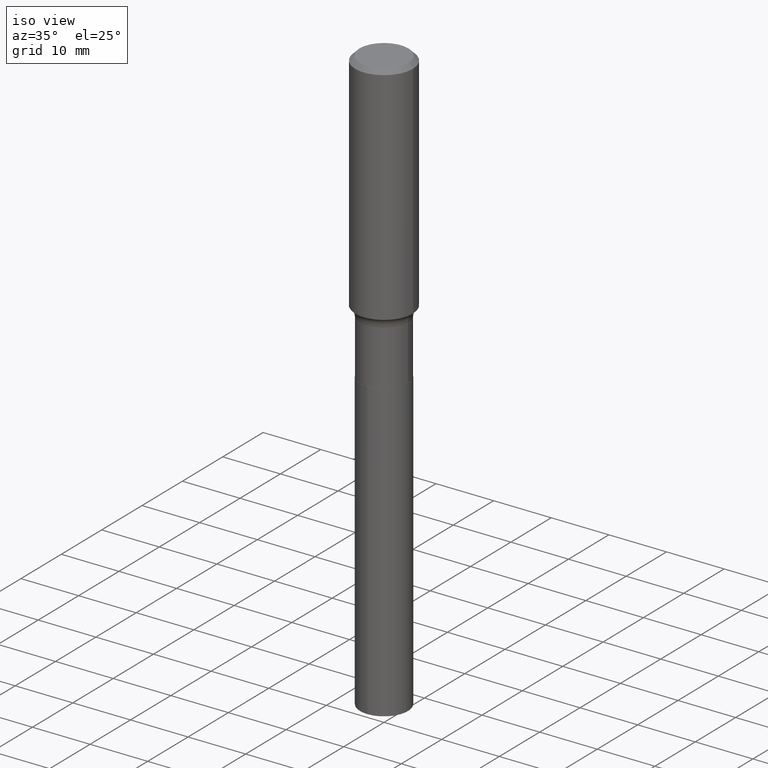
[diagram: clean part render]
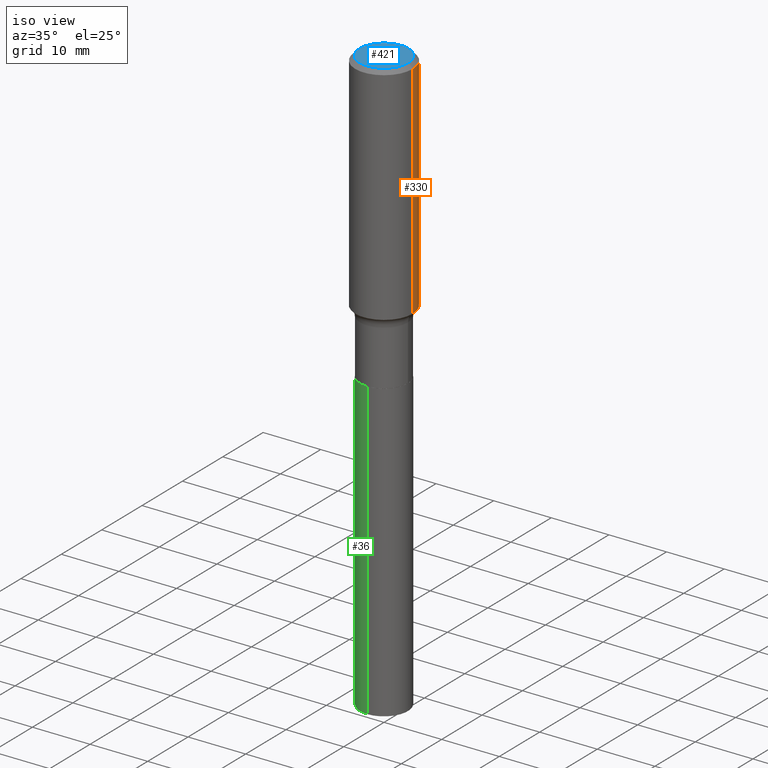
[diagram: same view with three faces highlighted in distinct colors, each labeled with its STEP entity id]
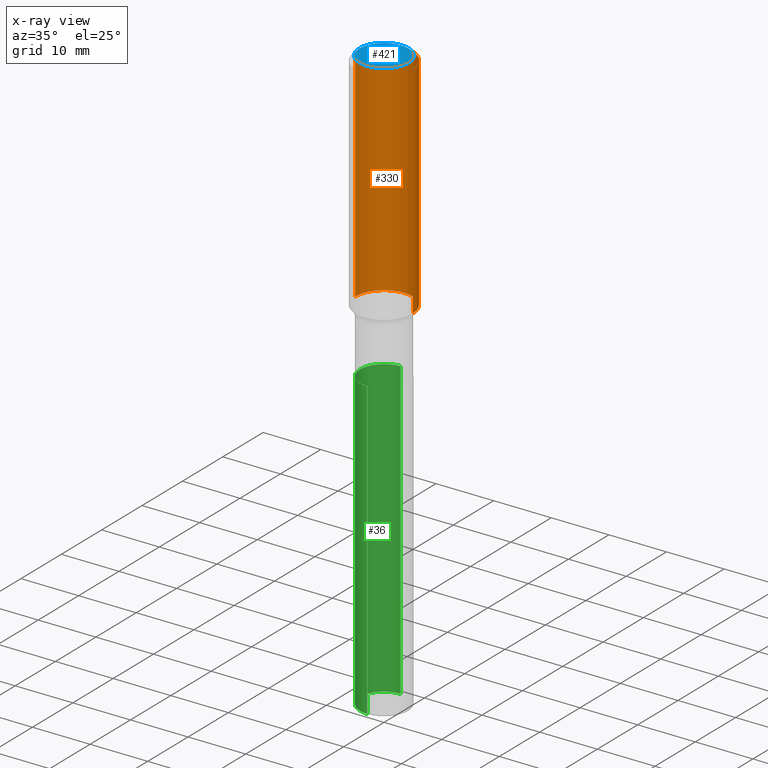
[diagram: x-ray of the same camera — body ghosted, the three highlighted faces saturated]
A machine part, iso view with three faces highlighted in distinct colors.
The next image is the same camera in x-ray (body ghosted, the three faces saturated) — at least one of them is partly hidden behind the body in this view.
Their STEP definitions:

[orange] entity #330 — the highlighted cylindrical surface (edge-blend (fillet) strip) has radius 5 mm, axis along (-0, 0, 1).
#9 = CARTESIAN_POINT ( 'NONE',  ( -0.1968500000000000527, -1.342112519284219140E-15, -0.02952750000000022371 ) ) ;
#12 = CARTESIAN_POINT ( 'NONE',  ( 3.767181709122995344E-29, -5.378537074023262958E-15, -1.540474243464055704 ) ) ;
#25 = DIRECTION ( 'NONE',  ( -2.445468806185136597E-29, 3.491481338843145583E-15, 1.000000000000000000 ) ) ;
#29 = CARTESIAN_POINT ( 'NONE',  ( -0.1968500000000001915, -3.979833698679504381E-15, -1.540474243464055704 ) ) ;
#32 = CARTESIAN_POINT ( 'NONE',  ( 7.220858017463217368E-31, -1.030947152326917719E-16, -0.02952750000000022371 ) ) ;
#64 = VERTEX_POINT ( 'NONE', #29 ) ;
#93 = AXIS2_PLACEMENT_3D ( 'NONE', #12, #461, #428 ) ;
#98 = VECTOR ( 'NONE', #466, 39.37007874015748143 ) ;
#103 = VERTEX_POINT ( 'NONE', #311 ) ;
#132 = EDGE_LOOP ( 'NONE', ( #419, #379, #472, #241 ) ) ;
#135 = CARTESIAN_POINT ( 'NONE',  ( 0.1968500000000001915, -6.753133277125806144E-15, -1.540474243464055704 ) ) ;
#181 = EDGE_CURVE ( 'NONE', #103, #183, #326, .T. ) ;
#183 = VERTEX_POINT ( 'NONE', #9 ) ;
#191 = LINE ( 'NONE', #261, #378 ) ;
#214 = VERTEX_POINT ( 'NONE', #135 ) ;
#220 = CARTESIAN_POINT ( 'NONE',  ( 0.1968500000000001082, -1.374596203102542397E-15, 9.598753983154305062E-30 ) ) ;
#241 = ORIENTED_EDGE ( 'NONE', *, *, #412, .F. ) ;
#255 = DIRECTION ( 'NONE',  ( 1.000000000000000000, -6.982962677686266711E-15, 0.000000000000000000 ) ) ;
#261 = CARTESIAN_POINT ( 'NONE',  ( -0.1968500000000001082, 1.398703375343757985E-15, -9.682923725166787881E-30 ) ) ;
#266 = EDGE_CURVE ( 'NONE', #64, #183, #191, .T. ) ;
#302 = CYLINDRICAL_SURFACE ( 'NONE', #485, 0.1968500000000001082 ) ;
#311 = CARTESIAN_POINT ( 'NONE',  ( 0.1968500000000000527, -1.477690918335233688E-15, -0.02952750000000022371 ) ) ;
#326 = CIRCLE ( 'NONE', #477, 0.1968500000000000527 ) ;
#330 = ADVANCED_FACE ( 'NONE', ( #482 ), #302, .T. ) ;
#337 = DIRECTION ( 'NONE',  ( -2.445468806185136877E-29, 3.491481338843145188E-15, 1.000000000000000000 ) ) ;
#350 = EDGE_CURVE ( 'NONE', #214, #64, #459, .T. ) ;
#375 = CARTESIAN_POINT ( 'NONE',  ( 0.000000000000000000, 0.000000000000000000, 0.000000000000000000 ) ) ;
#378 = VECTOR ( 'NONE', #337, 39.37007874015748143 ) ;
#379 = ORIENTED_EDGE ( 'NONE', *, *, #266, .T. ) ;
#387 = DIRECTION ( 'NONE',  ( 1.000000000000000000, -6.982962677686266711E-15, 4.876176775795935793E-29 ) ) ;
#412 = EDGE_CURVE ( 'NONE', #214, #103, #475, .T. ) ;
#419 = ORIENTED_EDGE ( 'NONE', *, *, #350, .T. ) ;
#428 = DIRECTION ( 'NONE',  ( 1.000000000000000000, -6.982962677686266711E-15, 0.000000000000000000 ) ) ;
#452 = DIRECTION ( 'NONE',  ( -2.445468806185136597E-29, 3.491481338843145583E-15, 1.000000000000000000 ) ) ;
#459 = CIRCLE ( 'NONE', #93, 0.1968500000000001915 ) ;
#461 = DIRECTION ( 'NONE',  ( -2.445468806185136597E-29, 3.491481338843145583E-15, 1.000000000000000000 ) ) ;
#466 = DIRECTION ( 'NONE',  ( -2.445468806185136877E-29, 3.491481338843145188E-15, 1.000000000000000000 ) ) ;
#472 = ORIENTED_EDGE ( 'NONE', *, *, #181, .F. ) ;
#475 = LINE ( 'NONE', #220, #98 ) ;
#477 = AXIS2_PLACEMENT_3D ( 'NONE', #32, #452, #255 ) ;
#482 = FACE_OUTER_BOUND ( 'NONE', #132, .T. ) ;
#485 = AXIS2_PLACEMENT_3D ( 'NONE', #375, #25, #387 ) ;

[blue] entity #421 — the highlighted planar face has unit normal (0, -0, -1).
#34 = EDGE_CURVE ( 'NONE', #107, #441, #80, .T. ) ;
#44 = DIRECTION ( 'NONE',  ( -2.445468806185136597E-29, 3.491481338843145583E-15, 1.000000000000000000 ) ) ;
#80 = CIRCLE ( 'NONE', #199, 0.1673224999999999851 ) ;
#97 = DIRECTION ( 'NONE',  ( 1.000000000000000000, -6.982962677686267499E-15, 4.876294436782262290E-29 ) ) ;
#107 = VERTEX_POINT ( 'NONE', #315 ) ;
#178 = ORIENTED_EDGE ( 'NONE', *, *, #385, .T. ) ;
#199 = AXIS2_PLACEMENT_3D ( 'NONE', #431, #427, #97 ) ;
#201 = DIRECTION ( 'NONE',  ( 1.000000000000000000, -6.982962677686267499E-15, 4.876294436782262290E-29 ) ) ;
#206 = CARTESIAN_POINT ( 'NONE',  ( 0.1673224999999999851, -1.300749711163072594E-15, 4.096137381456741925E-18 ) ) ;
#209 = DIRECTION ( 'NONE',  ( 2.438088387897960049E-29, -3.491481338843145188E-15, -1.000000000000000000 ) ) ;
#211 = ORIENTED_EDGE ( 'NONE', *, *, #34, .T. ) ;
#278 = CARTESIAN_POINT ( 'NONE',  ( -1.001697619218021790E-46, 1.430158722866389718E-32, 4.096137381448108366E-18 ) ) ;
#282 = DIRECTION ( 'NONE',  ( -1.000000000000000000, 6.982962677686265922E-15, -4.876176775795935793E-29 ) ) ;
#303 = PLANE ( 'NONE',  #306 ) ;
#306 = AXIS2_PLACEMENT_3D ( 'NONE', #344, #209, #282 ) ;
#315 = CARTESIAN_POINT ( 'NONE',  ( -0.1673224999999999851, 1.219954130253505460E-15, 4.096137381439757534E-18 ) ) ;
#344 = CARTESIAN_POINT ( 'NONE',  ( -5.008488096090108951E-47, 7.150793614331948590E-33, 2.048068690724054183E-18 ) ) ;
#372 = AXIS2_PLACEMENT_3D ( 'NONE', #278, #44, #201 ) ;
#385 = EDGE_CURVE ( 'NONE', #441, #107, #455, .T. ) ;
#421 = ADVANCED_FACE ( 'NONE', ( #436 ), #303, .F. ) ;
#427 = DIRECTION ( 'NONE',  ( -2.445468806185136597E-29, 3.491481338843145583E-15, 1.000000000000000000 ) ) ;
#431 = CARTESIAN_POINT ( 'NONE',  ( -1.001697619218021790E-46, 1.430158722866389718E-32, 4.096137381448108366E-18 ) ) ;
#436 = FACE_OUTER_BOUND ( 'NONE', #468, .T. ) ;
#441 = VERTEX_POINT ( 'NONE', #206 ) ;
#455 = CIRCLE ( 'NONE', #372, 0.1673224999999999851 ) ;
#468 = EDGE_LOOP ( 'NONE', ( #211, #178 ) ) ;

[green] entity #36 — the highlighted cylindrical surface (edge-blend (fillet) strip) has radius 4.1504 mm, axis along (-0, 0, 1).
#10 = VERTEX_POINT ( 'NONE', #223 ) ;
#27 = DIRECTION ( 'NONE',  ( -2.445551837428918341E-29, 3.491362433376205116E-15, 1.000000000000000000 ) ) ;
#36 = ADVANCED_FACE ( 'NONE', ( #257 ), #400, .T. ) ;
#37 = EDGE_CURVE ( 'NONE', #10, #109, #136, .T. ) ;
#60 = AXIS2_PLACEMENT_3D ( 'NONE', #464, #405, #430 ) ;
#67 = ORIENTED_EDGE ( 'NONE', *, *, #359, .F. ) ;
#89 = CARTESIAN_POINT ( 'NONE',  ( -1.141016101533887238E-15, -0.1634000000000069008, -1.980299999999999283 ) ) ;
#100 = CARTESIAN_POINT ( 'NONE',  ( 4.842761876888425335E-29, -6.914180495311080769E-15, -1.980299999999999949 ) ) ;
#109 = VERTEX_POINT ( 'NONE', #89 ) ;
#112 = CIRCLE ( 'NONE', #371, 0.1633999999999999897 ) ;
#127 = ORIENTED_EDGE ( 'NONE', *, *, #196, .T. ) ;
#136 = LINE ( 'NONE', #167, #271 ) ;
#140 = CIRCLE ( 'NONE', #60, 0.1633999999999999897 ) ;
#149 = CARTESIAN_POINT ( 'NONE',  ( 1.161026830232051948E-15, 0.1633999999999931063, -1.980300000000000393 ) ) ;
#167 = CARTESIAN_POINT ( 'NONE',  ( -1.141016101533887238E-15, -0.1634000000000069008, -1.980299999999999283 ) ) ;
#171 = ORIENTED_EDGE ( 'NONE', *, *, #270, .F. ) ;
#196 = EDGE_CURVE ( 'NONE', #408, #10, #140, .T. ) ;
#205 = DIRECTION ( 'NONE',  ( -2.445551837428918341E-29, 3.491362433376205116E-15, 1.000000000000000000 ) ) ;
#216 = AXIS2_PLACEMENT_3D ( 'NONE', #100, #329, #471 ) ;
#223 = CARTESIAN_POINT ( 'NONE',  ( -1.141016101533837737E-15, -0.1634000000000139230, -4.003580177897174686 ) ) ;
#227 = LINE ( 'NONE', #149, #435 ) ;
#230 = DIRECTION ( 'NONE',  ( -2.445551837428918341E-29, 3.491362433376205116E-15, 1.000000000000000000 ) ) ;
#244 = ORIENTED_EDGE ( 'NONE', *, *, #37, .T. ) ;
#257 = FACE_OUTER_BOUND ( 'NONE', #352, .T. ) ;
#270 = EDGE_CURVE ( 'NONE', #408, #438, #227, .T. ) ;
#271 = VECTOR ( 'NONE', #205, 39.37007874015748143 ) ;
#272 = CARTESIAN_POINT ( 'NONE',  ( 4.842761876888425335E-29, -6.914180495311080769E-15, -1.980299999999999949 ) ) ;
#274 = CARTESIAN_POINT ( 'NONE',  ( 1.161026830232101646E-15, 0.1633999999999931063, -1.980300000000000393 ) ) ;
#304 = DIRECTION ( 'NONE',  ( -6.982962677686265922E-15, -1.000000000000000000, 3.343755194203504699E-15 ) ) ;
#329 = DIRECTION ( 'NONE',  ( -2.445551837428918341E-29, 3.491362433376205116E-15, 1.000000000000000000 ) ) ;
#352 = EDGE_LOOP ( 'NONE', ( #171, #127, #244, #67 ) ) ;
#359 = EDGE_CURVE ( 'NONE', #438, #109, #112, .T. ) ;
#371 = AXIS2_PLACEMENT_3D ( 'NONE', #272, #27, #304 ) ;
#400 = CYLINDRICAL_SURFACE ( 'NONE', #216, 0.1633999999999999897 ) ;
#405 = DIRECTION ( 'NONE',  ( -2.445551837428918341E-29, 3.491362433376205116E-15, 1.000000000000000000 ) ) ;
#408 = VERTEX_POINT ( 'NONE', #418 ) ;
#418 = CARTESIAN_POINT ( 'NONE',  ( 1.161026830232101449E-15, 0.1633999999999860009, -4.003580177897175574 ) ) ;
#430 = DIRECTION ( 'NONE',  ( -6.982962677686265922E-15, -1.000000000000000000, 3.343755194203504699E-15 ) ) ;
#435 = VECTOR ( 'NONE', #230, 39.37007874015748143 ) ;
#438 = VERTEX_POINT ( 'NONE', #274 ) ;
#464 = CARTESIAN_POINT ( 'NONE',  ( 9.790798433578370854E-29, -1.397818490061600352E-14, -4.003580177897174686 ) ) ;
#471 = DIRECTION ( 'NONE',  ( -6.982962677686265922E-15, -1.000000000000000000, 3.343755194203504699E-15 ) ) ;